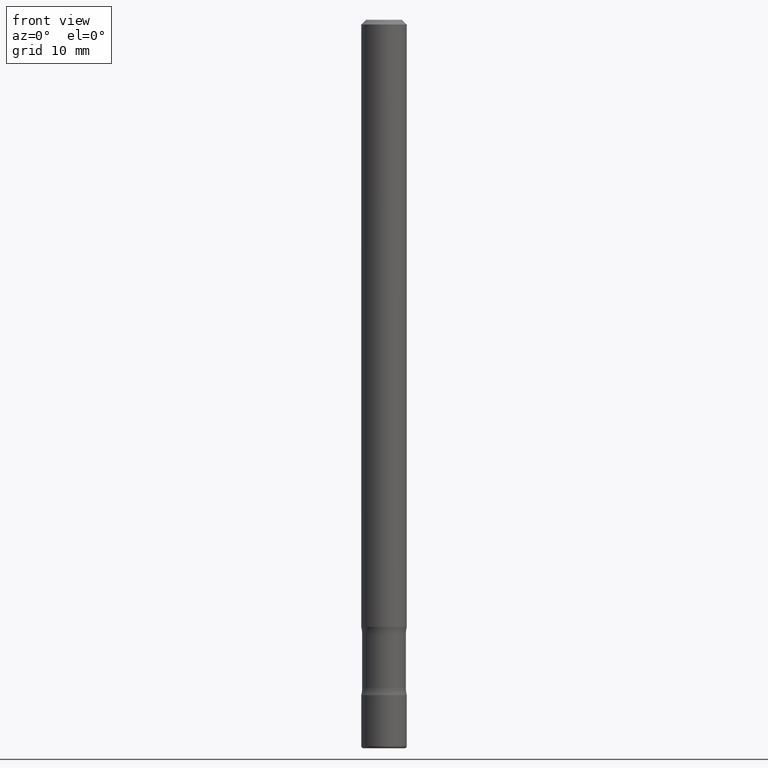
[diagram: clean part render]
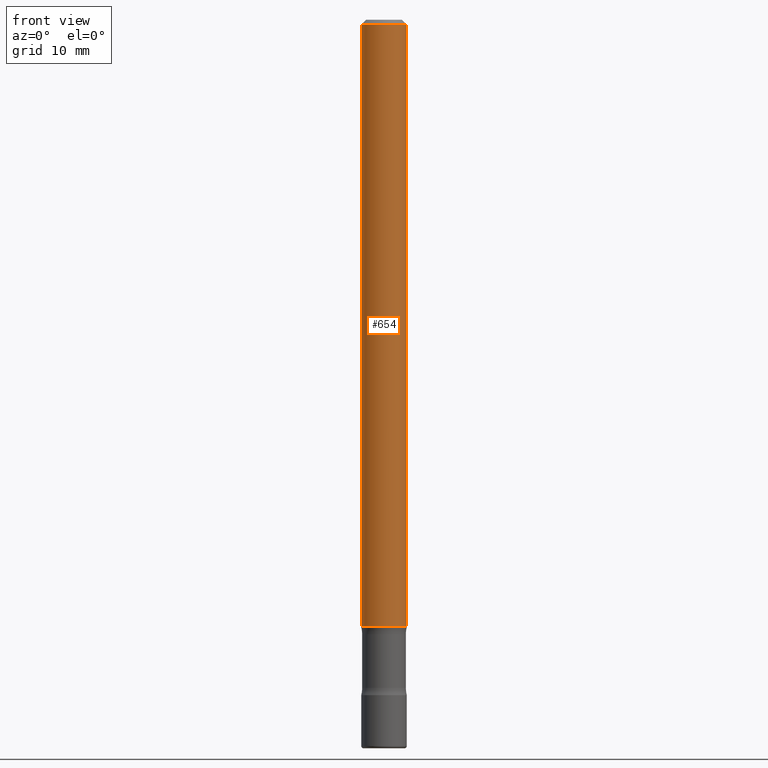
[diagram: same view with one face highlighted and labeled with its STEP entity id]
A machine part, front view. The second image highlights one B-rep face of the part: STEP entity #654.
In plain terms, the highlighted cylindrical surface (edge-blend (fillet) strip) has radius 2.3812 mm, axis along (-0, 0, 1).
Its self-contained STEP definition (entity closure, byte-faithful):
#16 = DIRECTION ( 'NONE',  ( -2.445468806185136877E-29, 3.491481338843145188E-15, 1.000000000000000000 ) ) ;
#44 = EDGE_LOOP ( 'NONE', ( #668, #175, #658, #719 ) ) ;
#64 = DIRECTION ( 'NONE',  ( 1.000000000000000000, -6.982962677686265133E-15, 4.876176775795935793E-29 ) ) ;
#104 = VERTEX_POINT ( 'NONE', #607 ) ;
#106 = CYLINDRICAL_SURFACE ( 'NONE', #448, 0.09374999999999987510 ) ;
#145 = AXIS2_PLACEMENT_3D ( 'NONE', #711, #155, #367 ) ;
#155 = DIRECTION ( 'NONE',  ( -2.445468806185136597E-29, 3.491481338843145583E-15, 1.000000000000000000 ) ) ;
#175 = ORIENTED_EDGE ( 'NONE', *, *, #789, .T. ) ;
#218 = DIRECTION ( 'NONE',  ( -2.445468806185136597E-29, 3.491481338843145583E-15, 1.000000000000000000 ) ) ;
#244 = CARTESIAN_POINT ( 'NONE',  ( -0.09374999999999975020, 5.848231242562227268E-16, -0.02000000000000004205 ) ) ;
#265 = EDGE_CURVE ( 'NONE', #525, #469, #753, .T. ) ;
#313 = CIRCLE ( 'NONE', #145, 0.09374999999999975020 ) ;
#367 = DIRECTION ( 'NONE',  ( 1.000000000000000000, -6.982962677686267499E-15, 0.000000000000000000 ) ) ;
#381 = FACE_OUTER_BOUND ( 'NONE', #44, .T. ) ;
#394 = CARTESIAN_POINT ( 'NONE',  ( 0.09374999999999987510, -6.546527510330865180E-16, 4.571415727308683500E-30 ) ) ;
#395 = AXIS2_PLACEMENT_3D ( 'NONE', #459, #218, #589 ) ;
#399 = VECTOR ( 'NONE', #717, 39.37007874015748143 ) ;
#419 = CARTESIAN_POINT ( 'NONE',  ( 0.000000000000000000, 0.000000000000000000, 0.000000000000000000 ) ) ;
#448 = AXIS2_PLACEMENT_3D ( 'NONE', #419, #620, #64 ) ;
#458 = CIRCLE ( 'NONE', #395, 0.09374999999999998612 ) ;
#459 = CARTESIAN_POINT ( 'NONE',  ( 6.113672015462842613E-29, -8.728703347107864943E-15, -2.500000000000000000 ) ) ;
#469 = VERTEX_POINT ( 'NONE', #536 ) ;
#480 = LINE ( 'NONE', #696, #399 ) ;
#495 = EDGE_CURVE ( 'NONE', #104, #598, #480, .T. ) ;
#500 = EDGE_CURVE ( 'NONE', #598, #469, #313, .T. ) ;
#525 = VERTEX_POINT ( 'NONE', #605 ) ;
#536 = CARTESIAN_POINT ( 'NONE',  ( 0.09374999999999975020, -7.130013140679424100E-16, -0.02000000000000004205 ) ) ;
#589 = DIRECTION ( 'NONE',  ( 1.000000000000000000, -6.982962677686273810E-15, 0.000000000000000000 ) ) ;
#598 = VERTEX_POINT ( 'NONE', #244 ) ;
#605 = CARTESIAN_POINT ( 'NONE',  ( 0.09374999999999998612, -9.383356098140953236E-15, -2.500000000000000000 ) ) ;
#607 = CARTESIAN_POINT ( 'NONE',  ( -0.09374999999999998612, -3.733132672167263885E-15, -2.500000000000000000 ) ) ;
#620 = DIRECTION ( 'NONE',  ( -2.445468806185136597E-29, 3.491481338843145583E-15, 1.000000000000000000 ) ) ;
#624 = VECTOR ( 'NONE', #16, 39.37007874015748143 ) ;
#654 = ADVANCED_FACE ( 'NONE', ( #381 ), #106, .T. ) ;
#658 = ORIENTED_EDGE ( 'NONE', *, *, #265, .T. ) ;
#668 = ORIENTED_EDGE ( 'NONE', *, *, #495, .F. ) ;
#696 = CARTESIAN_POINT ( 'NONE',  ( -0.09374999999999987510, 6.661338147750930368E-16, -4.611501647113967689E-30 ) ) ;
#711 = CARTESIAN_POINT ( 'NONE',  ( 4.890937612370283668E-31, -6.982962677686305168E-17, -0.02000000000000004205 ) ) ;
#717 = DIRECTION ( 'NONE',  ( -2.445468806185136877E-29, 3.491481338843145188E-15, 1.000000000000000000 ) ) ;
#719 = ORIENTED_EDGE ( 'NONE', *, *, #500, .F. ) ;
#753 = LINE ( 'NONE', #394, #624 ) ;
#789 = EDGE_CURVE ( 'NONE', #104, #525, #458, .T. ) ;